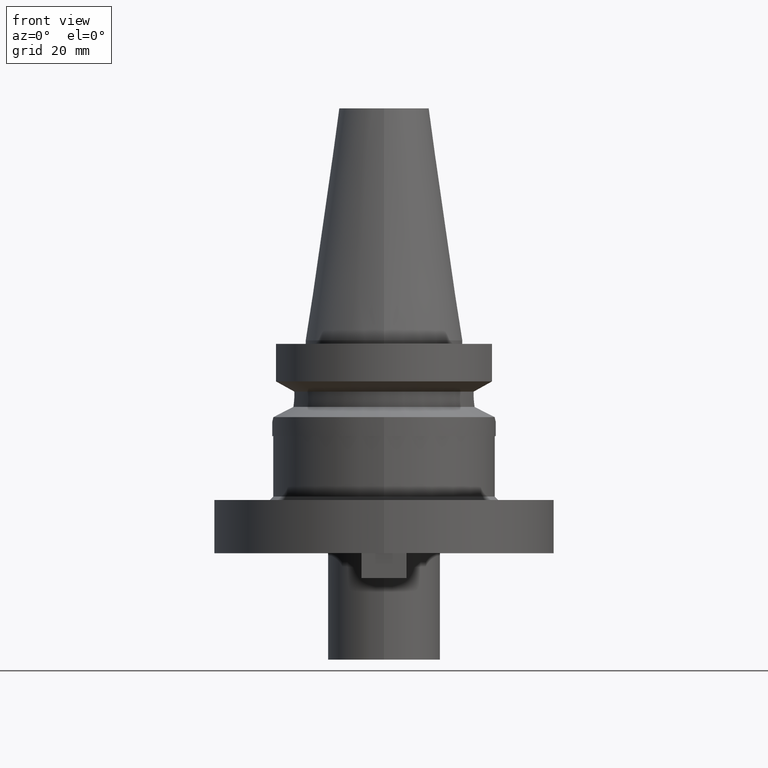
[diagram: clean part render]
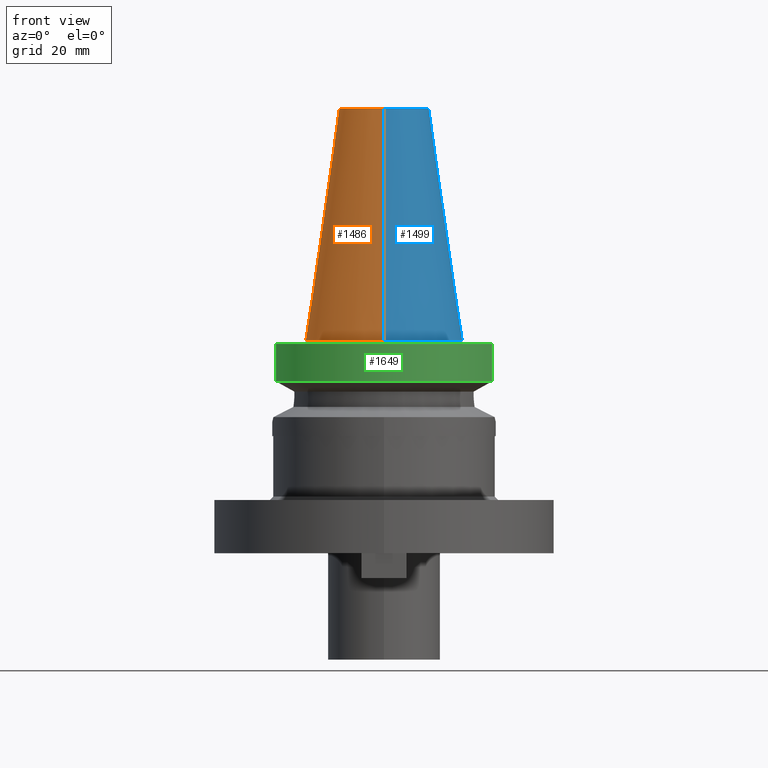
[diagram: same view with three faces highlighted in distinct colors, each labeled with its STEP entity id]
A machine part, front view with three faces highlighted in distinct colors.
Their STEP definitions:

[orange] entity #1486 — the highlighted conical surface has half-angle 8.297 deg.
#17=CARTESIAN_POINT('',(0.E0,1.625106302469E-14,6.54E1));
#18=DIRECTION('',(0.E0,0.E0,-1.E0));
#19=DIRECTION('',(0.E0,-1.E0,0.E0));
#20=AXIS2_PLACEMENT_3D('',#17,#18,#19);
#50=DIRECTION('',(0.E0,-1.443043893540E-1,-9.895333461856E-1));
#51=VECTOR('',#50,6.609175956738E1);
#52=CARTESIAN_POINT('',(0.E0,-1.268766899430E1,6.54E1));
#53=LINE('',#52,#51);
#57=CARTESIAN_POINT('',(0.E0,1.625106302469E-14,2.842170943040E-14));
#58=DIRECTION('',(0.E0,0.E0,-1.E0));
#59=DIRECTION('',(0.E0,-1.E0,0.E0));
#60=AXIS2_PLACEMENT_3D('',#57,#58,#59);
#65=DIRECTION('',(0.E0,1.443043893540E-1,-9.895333461856E-1));
#66=VECTOR('',#65,6.609175956738E1);
#67=CARTESIAN_POINT('',(0.E0,1.268766899430E1,6.54E1));
#68=LINE('',#67,#66);
#1253=CARTESIAN_POINT('',(0.E0,-1.268766899430E1,6.54E1));
#1254=CARTESIAN_POINT('',(0.E0,1.268766899430E1,6.54E1));
#1255=VERTEX_POINT('',#1253);
#1256=VERTEX_POINT('',#1254);
#1426=CARTESIAN_POINT('',(0.E0,2.2225E1,6.394884621841E-14));
#1427=VERTEX_POINT('',#1426);
#1428=CARTESIAN_POINT('',(0.E0,-2.2225E1,6.394884621841E-14));
#1429=VERTEX_POINT('',#1428);
#1472=CARTESIAN_POINT('',(0.E0,1.625106302469E-14,3.27E1));
#1473=DIRECTION('',(0.E0,0.E0,-1.E0));
#1474=DIRECTION('',(0.E0,-1.E0,0.E0));
#1475=AXIS2_PLACEMENT_3D('',#1472,#1473,#1474);
#1476=CONICAL_SURFACE('',#1475,1.745633449715E1,8.297E0);
#1478=ORIENTED_EDGE('',*,*,#1477,.F.);
#1479=ORIENTED_EDGE('',*,*,#1459,.F.);
#1481=ORIENTED_EDGE('',*,*,#1480,.T.);
#1483=ORIENTED_EDGE('',*,*,#1482,.T.);
#1484=EDGE_LOOP('',(#1478,#1479,#1481,#1483));
#1485=FACE_OUTER_BOUND('',#1484,.F.);
#21=CIRCLE('',#20,1.268766899430E1);
#61=CIRCLE('',#60,2.2225E1);
#1459=EDGE_CURVE('',#1255,#1256,#21,.T.);
#1477=EDGE_CURVE('',#1256,#1427,#68,.T.);
#1480=EDGE_CURVE('',#1255,#1429,#53,.T.);
#1482=EDGE_CURVE('',#1429,#1427,#61,.T.);
#1486=ADVANCED_FACE('',(#1485),#1476,.T.);

[blue] entity #1499 — the highlighted conical surface has half-angle 8.297 deg.
#26=CARTESIAN_POINT('',(0.E0,1.625106302469E-14,6.54E1));
#27=DIRECTION('',(0.E0,0.E0,-1.E0));
#28=DIRECTION('',(0.E0,1.E0,0.E0));
#29=AXIS2_PLACEMENT_3D('',#26,#27,#28);
#50=DIRECTION('',(0.E0,-1.443043893540E-1,-9.895333461856E-1));
#51=VECTOR('',#50,6.609175956738E1);
#52=CARTESIAN_POINT('',(0.E0,-1.268766899430E1,6.54E1));
#53=LINE('',#52,#51);
#65=DIRECTION('',(0.E0,1.443043893540E-1,-9.895333461856E-1));
#66=VECTOR('',#65,6.609175956738E1);
#67=CARTESIAN_POINT('',(0.E0,1.268766899430E1,6.54E1));
#68=LINE('',#67,#66);
#72=CARTESIAN_POINT('',(0.E0,1.625106302469E-14,2.842170943040E-14));
#73=DIRECTION('',(0.E0,0.E0,-1.E0));
#74=DIRECTION('',(0.E0,1.E0,0.E0));
#75=AXIS2_PLACEMENT_3D('',#72,#73,#74);
#1253=CARTESIAN_POINT('',(0.E0,-1.268766899430E1,6.54E1));
#1254=CARTESIAN_POINT('',(0.E0,1.268766899430E1,6.54E1));
#1255=VERTEX_POINT('',#1253);
#1256=VERTEX_POINT('',#1254);
#1426=CARTESIAN_POINT('',(0.E0,2.2225E1,6.394884621841E-14));
#1427=VERTEX_POINT('',#1426);
#1428=CARTESIAN_POINT('',(0.E0,-2.2225E1,6.394884621841E-14));
#1429=VERTEX_POINT('',#1428);
#1487=CARTESIAN_POINT('',(0.E0,1.625106302469E-14,3.27E1));
#1488=DIRECTION('',(0.E0,0.E0,-1.E0));
#1489=DIRECTION('',(0.E0,-1.E0,0.E0));
#1490=AXIS2_PLACEMENT_3D('',#1487,#1488,#1489);
#1491=CONICAL_SURFACE('',#1490,1.745633449715E1,8.297E0);
#1492=ORIENTED_EDGE('',*,*,#1477,.T.);
#1494=ORIENTED_EDGE('',*,*,#1493,.T.);
#1495=ORIENTED_EDGE('',*,*,#1480,.F.);
#1496=ORIENTED_EDGE('',*,*,#1461,.F.);
#1497=EDGE_LOOP('',(#1492,#1494,#1495,#1496));
#1498=FACE_OUTER_BOUND('',#1497,.F.);
#30=CIRCLE('',#29,1.268766899430E1);
#76=CIRCLE('',#75,2.2225E1);
#1461=EDGE_CURVE('',#1256,#1255,#30,.T.);
#1477=EDGE_CURVE('',#1256,#1427,#68,.T.);
#1480=EDGE_CURVE('',#1255,#1429,#53,.T.);
#1493=EDGE_CURVE('',#1427,#1429,#76,.T.);
#1499=ADVANCED_FACE('',(#1498),#1491,.T.);

[green] entity #1649 — the highlighted cylindrical surface (partial cylindrical patch) has radius 31.5 mm, axis along (0, 0, -1).
#138=CARTESIAN_POINT('',(0.E0,2.120720862083E-14,-1.E0));
#139=DIRECTION('',(0.E0,0.E0,-1.E0));
#140=DIRECTION('',(9.667943721520E-1,-2.555555555556E-1,0.E0));
#141=AXIS2_PLACEMENT_3D('',#138,#139,#140);
#146=CARTESIAN_POINT('',(0.E0,2.120720862083E-14,-1.E0));
#147=DIRECTION('',(0.E0,0.E0,-1.E0));
#148=DIRECTION('',(0.E0,-1.E0,0.E0));
#149=AXIS2_PLACEMENT_3D('',#146,#147,#148);
#251=CARTESIAN_POINT('',(0.E0,1.065333950388E-14,-1.156550565267E1));
#252=DIRECTION('',(0.E0,0.E0,1.E0));
#253=DIRECTION('',(-9.667943721520E-1,-2.555555555555E-1,0.E0));
#254=AXIS2_PLACEMENT_3D('',#251,#252,#253);
#259=CARTESIAN_POINT('',(0.E0,1.065333950388E-14,-1.156550565267E1));
#260=DIRECTION('',(0.E0,0.E0,1.E0));
#261=DIRECTION('',(0.E0,-1.E0,0.E0));
#262=AXIS2_PLACEMENT_3D('',#259,#260,#261);
#283=DIRECTION('',(1.806177212900E-8,-6.832987959571E-8,1.E0));
#284=VECTOR('',#283,1.056551215503E1);
#285=CARTESIAN_POINT('',(-3.045402291362E1,-8.049999278060E0,
-1.156551215503E1));
#286=LINE('',#285,#284);
#290=DIRECTION('',(-1.036760243955E-7,-3.922171054843E-7,-9.999999999999E-1));
#291=VECTOR('',#290,1.056546832567E1);
#292=CARTESIAN_POINT('',(3.045402272279E1,-8.05E0,-1.E0));
#293=LINE('',#292,#291);
#1402=CARTESIAN_POINT('',(-3.045402272279E1,-8.05E0,-1.E0));
#1403=VERTEX_POINT('',#1402);
#1404=CARTESIAN_POINT('',(-3.045402291362E1,-8.049999278060E0,
-1.156551215503E1));
#1405=VERTEX_POINT('',#1404);
#1418=CARTESIAN_POINT('',(3.045402272279E1,-8.05E0,-1.E0));
#1419=VERTEX_POINT('',#1418);
#1420=CARTESIAN_POINT('',(3.046064939756E-14,-3.15E1,-1.E0));
#1421=VERTEX_POINT('',#1420);
#1431=CARTESIAN_POINT('',(0.E0,-3.15E1,-1.156550565267E1));
#1432=CARTESIAN_POINT('',(3.045402272279E1,-8.049999999999E0,
-1.156550565267E1));
#1433=VERTEX_POINT('',#1431);
#1434=VERTEX_POINT('',#1432);
#1635=CARTESIAN_POINT('',(0.E0,2.120720862083E-14,7.317E1));
#1636=DIRECTION('',(0.E0,0.E0,-1.E0));
#1637=DIRECTION('',(0.E0,-1.E0,0.E0));
#1638=AXIS2_PLACEMENT_3D('',#1635,#1636,#1637);
#1639=CYLINDRICAL_SURFACE('',#1638,3.15E1);
#1640=ORIENTED_EDGE('',*,*,#1588,.T.);
#1641=ORIENTED_EDGE('',*,*,#1549,.F.);
#1642=ORIENTED_EDGE('',*,*,#1547,.F.);
#1644=ORIENTED_EDGE('',*,*,#1643,.T.);
#1645=ORIENTED_EDGE('',*,*,#1626,.F.);
#1646=ORIENTED_EDGE('',*,*,#1624,.F.);
#1647=EDGE_LOOP('',(#1640,#1641,#1642,#1644,#1645,#1646));
#1648=FACE_OUTER_BOUND('',#1647,.F.);
#142=CIRCLE('',#141,3.15E1);
#150=CIRCLE('',#149,3.15E1);
#255=CIRCLE('',#254,3.15E1);
#263=CIRCLE('',#262,3.15E1);
#1547=EDGE_CURVE('',#1419,#1421,#142,.T.);
#1549=EDGE_CURVE('',#1421,#1403,#150,.T.);
#1588=EDGE_CURVE('',#1405,#1403,#286,.T.);
#1624=EDGE_CURVE('',#1405,#1433,#255,.T.);
#1626=EDGE_CURVE('',#1433,#1434,#263,.T.);
#1643=EDGE_CURVE('',#1419,#1434,#293,.T.);
#1649=ADVANCED_FACE('',(#1648),#1639,.T.);